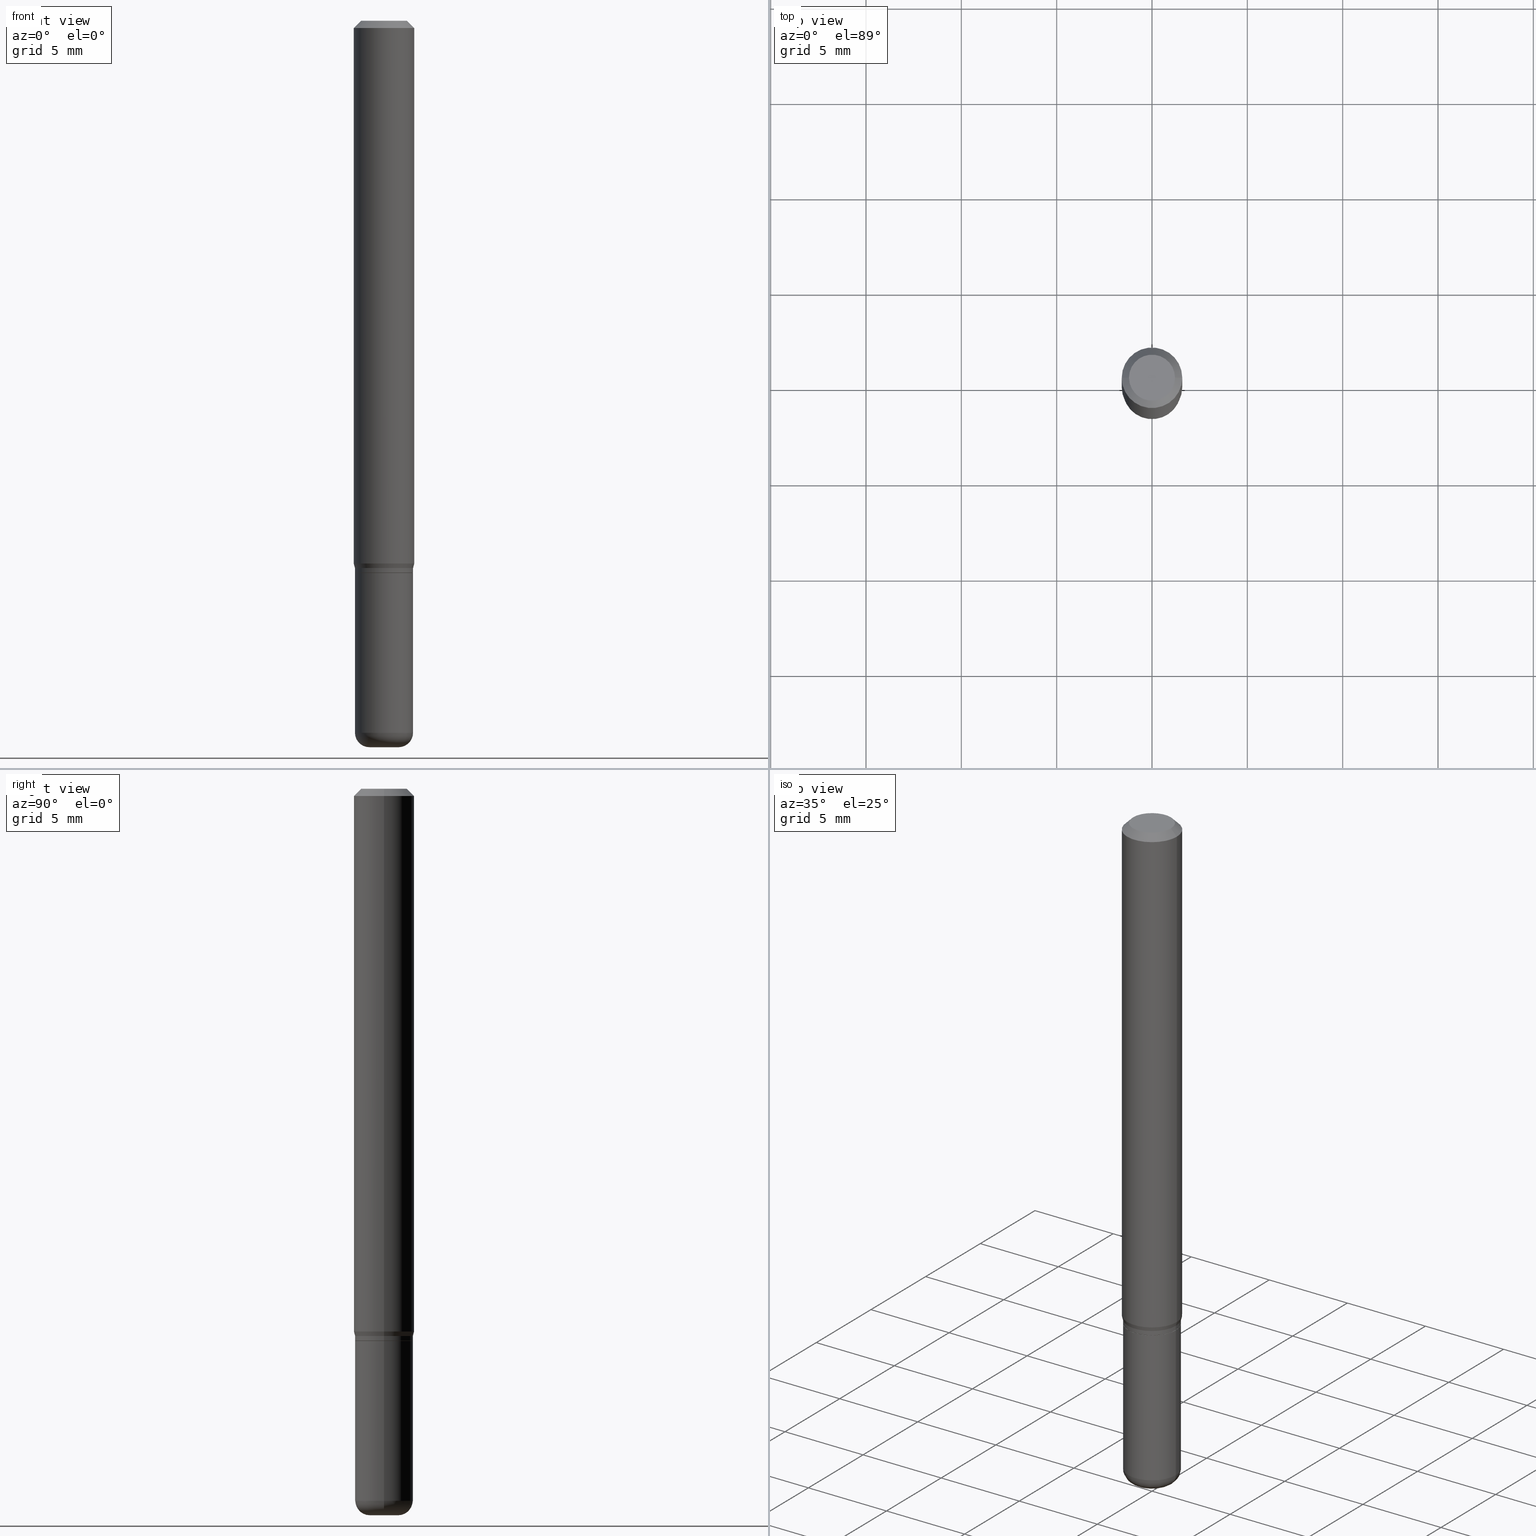
[diagram: canonical four-view strip — front | top / right | iso, engineering-drawing reading convention]
A machine part, canonical four-view strip (front | top / right | iso — engineering-drawing reading convention). The complete STEP part file that produces these views, byte-faithful:
ISO-10303-21;
HEADER;
FILE_DESCRIPTION (( 'STEP AP203' ),
    '1' );
FILE_NAME ('08640.STEP',
    '2024-02-29T20:07:18',
    ( '' ),
    ( '' ),
    'SwSTEP 2.0',
    'SolidWorks 2023',
    '' );
FILE_SCHEMA (( 'CONFIG_CONTROL_DESIGN' ));
ENDSEC;

DATA;
#1 = DIRECTION ( 'NONE',  ( -2.445468806185136597E-29, 3.491481338843145583E-15, 1.000000000000000000 ) ) ;
#2 = EDGE_CURVE ( 'NONE', #246, #95, #270, .T. ) ;
#3 = PERSON_AND_ORGANIZATION ( #82, #60 ) ;
#4 = CARTESIAN_POINT ( 'NONE',  ( 3.594839145092150820E-29, -5.132477568099424807E-15, -1.470000000000000195 ) ) ;
#5 = EDGE_LOOP ( 'NONE', ( #315, #488, #62, #148 ) ) ;
#6 = AXIS2_PLACEMENT_3D ( 'NONE', #117, #483, #229 ) ;
#7 = PRODUCT_DEFINITION_FORMATION_WITH_SPECIFIED_SOURCE ( 'ANY', '', #506, .NOT_KNOWN. ) ;
#8 = DIRECTION ( 'NONE',  ( 1.000000000000000000, -6.982962677686268288E-15, 0.000000000000000000 ) ) ;
#9 = ORIENTED_EDGE ( 'NONE', *, *, #221, .F. ) ;
#10 = SECURITY_CLASSIFICATION_LEVEL ( 'unclassified' ) ;
#11 = DIRECTION ( 'NONE',  ( -1.000000000000000000, 6.982962677686265922E-15, -4.876176775795935793E-29 ) ) ;
#12 = VERTEX_POINT ( 'NONE', #177 ) ;
#13 = CC_DESIGN_PERSON_AND_ORGANIZATION_ASSIGNMENT ( #290, #278, ( #297 ) ) ;
#14 = DIRECTION ( 'NONE',  ( -0.7071067811866199593, 7.493145998870616062E-15, 0.7071067811864750752 ) ) ;
#15 = VERTEX_POINT ( 'NONE', #134 ) ;
#16 = APPROVAL ( #158, 'UNSPECIFIED' ) ;
#17 = VECTOR ( 'NONE', #310, 39.37007874015748143 ) ;
#18 = VERTEX_POINT ( 'NONE', #382 ) ;
#19 = EDGE_LOOP ( 'NONE', ( #210, #132, #257, #181 ) ) ;
#20 = EDGE_CURVE ( 'NONE', #300, #424, #265, .T. ) ;
#21 = CARTESIAN_POINT ( 'NONE',  ( -6.680649051745406845E-45, 9.538196290434862081E-31, 2.731847993664263218E-16 ) ) ;
#22 = CARTESIAN_POINT ( 'NONE',  ( 3.582686580359767159E-29, -5.359686688179454114E-15, -1.500000000000000444 ) ) ;
#23 = AXIS2_PLACEMENT_3D ( 'NONE', #35, #279, #107 ) ;
#24 = CARTESIAN_POINT ( 'NONE',  ( 0.06000000000000003247, -4.364351673553931682E-15, -1.130000000000000338 ) ) ;
#25 = AXIS2_PLACEMENT_3D ( 'NONE', #428, #385, #316 ) ;
#26 = DIRECTION ( 'NONE',  ( 1.000000000000000000, -6.982962677686264344E-15, 0.000000000000000000 ) ) ;
#27 = EDGE_CURVE ( 'NONE', #387, #404, #267, .T. ) ;
#28 = CARTESIAN_POINT ( 'NONE',  ( 0.06000000000000010880, -5.551455328760601441E-15, -1.470000000000000195 ) ) ;
#29 = VERTEX_POINT ( 'NONE', #28 ) ;
#30 = DIRECTION ( 'NONE',  ( 0.000000000000000000, 0.000000000000000000, 1.000000000000000000 ) ) ;
#31 = CARTESIAN_POINT ( 'NONE',  ( 2.787834439051055989E-29, -3.980288726281186698E-15, -1.140000000000000124 ) ) ;
#32 = AXIS2_PLACEMENT_3D ( 'NONE', #21, #345, #500 ) ;
#33 = EDGE_CURVE ( 'NONE', #12, #300, #419, .T. ) ;
#34 = LOCAL_TIME ( 15, 7, 18.00000000000000000, #333 ) ;
#35 = CARTESIAN_POINT ( 'NONE',  ( -0.02999999999999999889, -4.919314747371394562E-15, -1.470000000000000195 ) ) ;
#36 = CC_DESIGN_PERSON_AND_ORGANIZATION_ASSIGNMENT ( #160, #112, ( #7 ) ) ;
#37 = FACE_OUTER_BOUND ( 'NONE', #292, .T. ) ;
#38 = CYLINDRICAL_SURFACE ( 'NONE', #476, 0.06000000000000004635 ) ;
#39 = COORDINATED_UNIVERSAL_TIME_OFFSET ( 5, 0, .BEHIND. ) ;
#40 = EDGE_CURVE ( 'NONE', #387, #424, #183, .T. ) ;
#41 = DIRECTION ( 'NONE',  ( 2.445468806185136597E-29, -3.491481338843145583E-15, -1.000000000000000000 ) ) ;
#42 = CIRCLE ( 'NONE', #284, 0.05950000000000005979 ) ;
#43 = APPROVAL_ROLE ( '' ) ;
#44 = AXIS2_PLACEMENT_3D ( 'NONE', #465, #105, #350 ) ;
#45 = CARTESIAN_POINT ( 'NONE',  ( 0.000000000000000000, 0.000000000000000000, 0.000000000000000000 ) ) ;
#46 = DATE_AND_TIME ( #364, #157 ) ;
#47 = DIRECTION ( 'NONE',  ( -6.982962677686266711E-15, -1.000000000000000000, 3.491481338843145583E-15 ) ) ;
#48 = EDGE_CURVE ( 'NONE', #404, #387, #136, .T. ) ;
#49 = ORIENTED_EDGE ( 'NONE', *, *, #175, .T. ) ;
#50 = DIRECTION ( 'NONE',  ( -2.445468806185136597E-29, 3.491481338843145583E-15, 1.000000000000000000 ) ) ;
#51 = ORIENTED_EDGE ( 'NONE', *, *, #340, .F. ) ;
#52 = EDGE_CURVE ( 'NONE', #18, #122, #349, .T. ) ;
#53 = AXIS2_PLACEMENT_3D ( 'NONE', #515, #317, #159 ) ;
#54 = AXIS2_PLACEMENT_3D ( 'NONE', #264, #63, #66 ) ;
#55 = DIRECTION ( 'NONE',  ( 1.000000000000000000, -6.982962677686272233E-15, 0.000000000000000000 ) ) ;
#56 = EDGE_LOOP ( 'NONE', ( #487, #408, #254, #203 ) ) ;
#57 = DIRECTION ( 'NONE',  ( 1.000000000000000000, -6.982962677686268288E-15, 0.000000000000000000 ) ) ;
#58 = EDGE_LOOP ( 'NONE', ( #352, #86, #65, #98 ) ) ;
#59 = AXIS2_PLACEMENT_3D ( 'NONE', #396, #357, #393 ) ;
#60 = ORGANIZATION ( 'UNSPECIFIED', 'UNSPECIFIED', '' ) ;
#61 = ORIENTED_EDGE ( 'NONE', *, *, #423, .F. ) ;
#62 = ORIENTED_EDGE ( 'NONE', *, *, #262, .F. ) ;
#63 = DIRECTION ( 'NONE',  ( -2.445468806185136597E-29, 3.491481338843145583E-15, 1.000000000000000000 ) ) ;
#64 = AXIS2_PLACEMENT_3D ( 'NONE', #409, #374, #456 ) ;
#65 = ORIENTED_EDGE ( 'NONE', *, *, #40, .T. ) ;
#66 = DIRECTION ( 'NONE',  ( 1.000000000000000000, -6.982962677686266711E-15, 0.000000000000000000 ) ) ;
#67 = ORIENTED_EDGE ( 'NONE', *, *, #52, .T. ) ;
#68 = DIRECTION ( 'NONE',  ( -2.445468806185136597E-29, 3.491481338843145583E-15, 1.000000000000000000 ) ) ;
#69 = DIRECTION ( 'NONE',  ( 1.000000000000000000, -6.982962677686272233E-15, 0.000000000000000000 ) ) ;
#70 =( NAMED_UNIT ( * ) SI_UNIT ( $, .STERADIAN. ) SOLID_ANGLE_UNIT ( ) );
#71 = CARTESIAN_POINT ( 'NONE',  ( 0.000000000000000000, 0.000000000000000000, 0.000000000000000000 ) ) ;
#72 = ADVANCED_FACE ( 'NONE', ( #273 ), #156, .F. ) ;
#73 = AXIS2_PLACEMENT_3D ( 'NONE', #208, #334, #291 ) ;
#74 = DIRECTION ( 'NONE',  ( 1.000000000000000000, -6.982962677686270655E-15, 0.000000000000000000 ) ) ;
#75 = DIRECTION ( 'NONE',  ( 1.000000000000000000, -6.982962677686264344E-15, 0.000000000000000000 ) ) ;
#76 = CALENDAR_DATE ( 2024, 29, 2 ) ;
#77 = ADVANCED_FACE ( 'NONE', ( #434 ), #436, .T. ) ;
#78 = CARTESIAN_POINT ( 'NONE',  ( 0.06000000000000006023, -4.189777606611764365E-16, 2.925706065477564208E-30 ) ) ;
#79 = DATE_TIME_ROLE ( 'creation_date' ) ;
#80 = FACE_OUTER_BOUND ( 'NONE', #56, .T. ) ;
#81 = DIRECTION ( 'NONE',  ( 1.000000000000000000, -6.982962677686261189E-15, 0.000000000000000000 ) ) ;
#82 = PERSON ( 'UNSPECIFIED', 'UNSPECIFIED', 'UNSPECIFIED', ('UNSPECIFIED'), ('UNSPECIFIED'), ('UNSPECIFIED') ) ;
#83 = EDGE_LOOP ( 'NONE', ( #457, #447, #218, #263 ) ) ;
#84 = LINE ( 'NONE', #337, #258 ) ;
#85 = EDGE_CURVE ( 'NONE', #424, #226, #131, .T. ) ;
#86 = ORIENTED_EDGE ( 'NONE', *, *, #27, .F. ) ;
#87 = CIRCLE ( 'NONE', #399, 0.05999999999999999778 ) ;
#88 = CIRCLE ( 'NONE', #433, 0.06000000000000003247 ) ;
#89 = CYLINDRICAL_SURFACE ( 'NONE', #313, 0.06000000000000004635 ) ;
#90 = ORIENTED_EDGE ( 'NONE', *, *, #40, .F. ) ;
#91 = CARTESIAN_POINT ( 'NONE',  ( 3.668203209277706016E-29, -5.237222008264719754E-15, -1.500000000000000444 ) ) ;
#92 = EDGE_LOOP ( 'NONE', ( #126, #209, #289, #90 ) ) ;
#93 = DIRECTION ( 'NONE',  ( 1.000000000000000000, -6.982962677686265922E-15, 0.000000000000000000 ) ) ;
#94 = CONICAL_SURFACE ( 'NONE', #295, 0.06000000000000003247, 0.2617993877991521279 ) ;
#95 = VERTEX_POINT ( 'NONE', #281 ) ;
#96 = DIRECTION ( 'NONE',  ( 1.000000000000000000, -6.982962677686266711E-15, 4.852736867747365086E-29 ) ) ;
#97 = CYLINDRICAL_SURFACE ( 'NONE', #64, 0.06000000000000006023 ) ;
#98 = ORIENTED_EDGE ( 'NONE', *, *, #85, .T. ) ;
#99 = DIRECTION ( 'NONE',  ( -2.445468806185136597E-29, 3.491481338843145583E-15, 1.000000000000000000 ) ) ;
#100 = CIRCLE ( 'NONE', #188, 0.06000000000000006023 ) ;
#101 = CARTESIAN_POINT ( 'NONE',  ( -0.06250000000000000000, 3.840629472727455270E-16, -0.01499999999999970281 ) ) ;
#102 = CC_DESIGN_PERSON_AND_ORGANIZATION_ASSIGNMENT ( #114, #242, ( #506 ) ) ;
#103 = DIRECTION ( 'NONE',  ( -2.445468806185136877E-29, 3.491481338843145188E-15, 1.000000000000000000 ) ) ;
#104 = ORIENTED_EDGE ( 'NONE', *, *, #33, .F. ) ;
#105 = DIRECTION ( 'NONE',  ( -2.445468806185136597E-29, 3.491481338843145583E-15, 1.000000000000000000 ) ) ;
#106 = ADVANCED_FACE ( 'NONE', ( #318 ), #441, .T. ) ;
#107 = DIRECTION ( 'NONE',  ( -1.000000000000000000, 7.105427357600997126E-15, 0.000000000000000000 ) ) ;
#108 = LINE ( 'NONE', #182, #17 ) ;
#109 = APPROVAL ( #440, 'UNSPECIFIED' ) ;
#110 = LINE ( 'NONE', #78, #370 ) ;
#111 = AXIS2_PLACEMENT_3D ( 'NONE', #418, #68, #390 ) ;
#112 = PERSON_AND_ORGANIZATION_ROLE ( 'creator' ) ;
#113 = DIRECTION ( 'NONE',  ( -2.445468806185136597E-29, 3.491481338843145583E-15, 1.000000000000000000 ) ) ;
#114 = PERSON_AND_ORGANIZATION ( #82, #60 ) ;
#115 = CARTESIAN_POINT ( 'NONE',  ( 0.05999999999999999778, -4.399266486942362543E-15, -1.140000000000000124 ) ) ;
#116 = PERSON_AND_ORGANIZATION ( #82, #60 ) ;
#117 = CARTESIAN_POINT ( 'NONE',  ( 3.668203209277632395E-31, -5.237222008264614861E-17, -0.01499999999999970281 ) ) ;
#118 = CIRCLE ( 'NONE', #23, 0.03000000000000010991 ) ;
#119 = PERSON_AND_ORGANIZATION ( #82, #60 ) ;
#120 = CC_DESIGN_APPROVAL ( #109, ( #191 ) ) ;
#121 = CARTESIAN_POINT ( 'NONE',  ( 0.05950000000000005979, -4.395775005603519536E-15, -1.140000000000000124 ) ) ;
#122 = VERTEX_POINT ( 'NONE', #239 ) ;
#123 = PERSON_AND_ORGANIZATION ( #82, #60 ) ;
#124 = ADVANCED_FACE ( 'NONE', ( #513 ), #38, .T. ) ;
#125 = DIRECTION ( 'NONE',  ( -2.445468806185136597E-29, 3.491481338843145583E-15, 1.000000000000000000 ) ) ;
#126 = ORIENTED_EDGE ( 'NONE', *, *, #48, .F. ) ;
#127 = DIRECTION ( 'NONE',  ( -2.445468806185136597E-29, 3.491481338843145583E-15, 1.000000000000000000 ) ) ;
#128 = EDGE_CURVE ( 'NONE', #29, #201, #110, .T. ) ;
#129 = EDGE_CURVE ( 'NONE', #343, #342, #42, .T. ) ;
#130 = ORIENTED_EDGE ( 'NONE', *, *, #186, .F. ) ;
#131 = CIRCLE ( 'NONE', #6, 0.06250000000000000000 ) ;
#132 = ORIENTED_EDGE ( 'NONE', *, *, #2, .T. ) ;
#133 = ORIENTED_EDGE ( 'NONE', *, *, #129, .F. ) ;
#134 = CARTESIAN_POINT ( 'NONE',  ( 0.03000000000000000930, -5.446710888595307282E-15, -1.500000000000000444 ) ) ;
#135 = CLOSED_SHELL ( 'NONE', ( #426, #398, #72, #205, #231, #372 ) ) ;
#136 = CIRCLE ( 'NONE', #32, 0.04750000000000000749 ) ;
#137 = EDGE_CURVE ( 'NONE', #29, #246, #249, .T. ) ;
#138 = CIRCLE ( 'NONE', #190, 0.03000000000000000930 ) ;
#139 = DIRECTION ( 'NONE',  ( -2.445468806185136877E-29, 3.491481338843145188E-15, 1.000000000000000000 ) ) ;
#140 = CARTESIAN_POINT ( 'NONE',  ( 2.787834439051055989E-29, -3.980288726281186698E-15, -1.140000000000000124 ) ) ;
#141 = APPROVAL ( #327, 'UNSPECIFIED' ) ;
#142 = CARTESIAN_POINT ( 'NONE',  ( -0.06000000000000003247, -3.519048271436695347E-15, -1.130000000000000338 ) ) ;
#143 = FACE_OUTER_BOUND ( 'NONE', #307, .T. ) ;
#144 = ADVANCED_FACE ( 'NONE', ( #510 ), #355, .T. ) ;
#145 = EDGE_LOOP ( 'NONE', ( #492, #185, #499, #498 ) ) ;
#146 = CARTESIAN_POINT ( 'NONE',  ( 0.000000000000000000, 0.000000000000000000, 0.000000000000000000 ) ) ;
#147 = VERTEX_POINT ( 'NONE', #475 ) ;
#148 = ORIENTED_EDGE ( 'NONE', *, *, #52, .F. ) ;
#149 = AXIS2_PLACEMENT_3D ( 'NONE', #187, #312, #26 ) ;
#150 = EDGE_CURVE ( 'NONE', #300, #122, #176, .T. ) ;
#151 = DIRECTION ( 'NONE',  ( 1.000000000000000000, 0.000000000000000000, 0.000000000000000000 ) ) ;
#152 = DIRECTION ( 'NONE',  ( -1.000000000000000000, 6.982962677686266711E-15, 0.000000000000000000 ) ) ;
#153 = MECHANICAL_CONTEXT ( 'NONE', #309, 'mechanical' ) ;
#154 = DIRECTION ( 'NONE',  ( 1.000000000000000000, -6.982962677686269077E-15, 0.000000000000000000 ) ) ;
#155 = PLANE ( 'NONE',  #251 ) ;
#156 = PLANE ( 'NONE',  #59 ) ;
#157 = LOCAL_TIME ( 15, 7, 18.00000000000000000, #39 ) ;
#158 = APPROVAL_STATUS ( 'not_yet_approved' ) ;
#159 = DIRECTION ( 'NONE',  ( 1.000000000000000000, -6.982962677686269077E-15, 0.000000000000000000 ) ) ;
#160 = PERSON_AND_ORGANIZATION ( #82, #60 ) ;
#161 = DIRECTION ( 'NONE',  ( 1.000000000000000000, -6.982962677686269077E-15, 0.000000000000000000 ) ) ;
#162 = DATE_TIME_ROLE ( 'classification_date' ) ;
#163 = FACE_OUTER_BOUND ( 'NONE', #261, .T. ) ;
#164 = ORIENTED_EDGE ( 'NONE', *, *, #137, .F. ) ;
#165 = AXIS2_PLACEMENT_3D ( 'NONE', #31, #1, #161 ) ;
#166 = CONICAL_SURFACE ( 'NONE', #509, 0.06250000000000000000, 0.7853981633974488341 ) ;
#167 = EDGE_CURVE ( 'NONE', #147, #12, #473, .T. ) ;
#168 = CARTESIAN_POINT ( 'NONE',  ( -0.03000000000000000930, -4.865105557090026124E-15, -1.500000000000000444 ) ) ;
#169 = ORIENTED_EDGE ( 'NONE', *, *, #221, .T. ) ;
#170 = CC_DESIGN_PERSON_AND_ORGANIZATION_ASSIGNMENT ( #116, #336, ( #191 ) ) ;
#171 = DIRECTION ( 'NONE',  ( 1.000000000000000000, -6.982962677686274599E-15, 0.000000000000000000 ) ) ;
#172 = ADVANCED_FACE ( 'NONE', ( #389 ), #94, .T. ) ;
#173 = ORIENTED_EDGE ( 'NONE', *, *, #150, .T. ) ;
#174 = CARTESIAN_POINT ( 'NONE',  ( 0.04750000000000000749, -4.035134999187568762E-16, 2.731847993664288856E-16 ) ) ;
#175 = EDGE_CURVE ( 'NONE', #308, #246, #118, .T. ) ;
#176 = CIRCLE ( 'NONE', #516, 0.06250000000000000000 ) ;
#177 = CARTESIAN_POINT ( 'NONE',  ( -0.06000000000000003247, -3.493878505051893006E-15, -1.130000000000000338 ) ) ;
#178 = ORIENTED_EDGE ( 'NONE', *, *, #505, .F. ) ;
#179 = AXIS2_PLACEMENT_3D ( 'NONE', #288, #47, #171 ) ;
#180 = CONICAL_SURFACE ( 'NONE', #149, 0.06000000000000003247, 0.2617993877991521279 ) ;
#181 = ORIENTED_EDGE ( 'NONE', *, *, #128, .F. ) ;
#182 = CARTESIAN_POINT ( 'NONE',  ( 0.05950000000000005979, -4.395775005603519536E-15, -1.140000000000000124 ) ) ;
#183 = LINE ( 'NONE', #101, #341 ) ;
#184 = DESIGN_CONTEXT ( 'detailed design', #213, 'design' ) ;
#185 = ORIENTED_EDGE ( 'NONE', *, *, #129, .T. ) ;
#186 = EDGE_CURVE ( 'NONE', #122, #226, #321, .T. ) ;
#187 = CARTESIAN_POINT ( 'NONE',  ( 2.763379750989205565E-29, -3.945373912892755838E-15, -1.130000000000000338 ) ) ;
#188 = AXIS2_PLACEMENT_3D ( 'NONE', #450, #127, #81 ) ;
#189 = CARTESIAN_POINT ( 'NONE',  ( 0.06250000000000000000, -4.888073874380378612E-16, -0.01499999999999970281 ) ) ;
#190 = AXIS2_PLACEMENT_3D ( 'NONE', #91, #212, #93 ) ;
#191 = PRODUCT_DEFINITION ( 'UNKNOWN', '', #7, #184 ) ;
#192 = FACE_OUTER_BOUND ( 'NONE', #5, .T. ) ;
#193 = CARTESIAN_POINT ( 'NONE',  ( 0.06250000000000000000, -4.364351673553916694E-16, 3.047610484872459871E-30 ) ) ;
#194 = DIRECTION ( 'NONE',  ( -2.445468806185136597E-29, 3.491481338843145583E-15, 1.000000000000000000 ) ) ;
#195 = CALENDAR_DATE ( 2024, 29, 2 ) ;
#196 = DIRECTION ( 'NONE',  ( -2.445468806185136597E-29, 3.491481338843145583E-15, 1.000000000000000000 ) ) ;
#197 = CIRCLE ( 'NONE', #179, 0.03000000000000010991 ) ;
#198 = DIRECTION ( 'NONE',  ( 1.000000000000000000, -6.982962677686266711E-15, 4.876176775795935232E-29 ) ) ;
#199 = PERSON_AND_ORGANIZATION_ROLE ( 'design_supplier' ) ;
#200 = DIRECTION ( 'NONE',  ( -2.445468806185136597E-29, 3.491481338843145583E-15, 1.000000000000000000 ) ) ;
#201 = VERTEX_POINT ( 'NONE', #115 ) ;
#202 = VECTOR ( 'NONE', #14, 39.37007874015748143 ) ;
#203 = ORIENTED_EDGE ( 'NONE', *, *, #256, .F. ) ;
#204 = VECTOR ( 'NONE', #358, 39.37007874015748143 ) ;
#205 = ADVANCED_FACE ( 'NONE', ( #233 ), #479, .T. ) ;
#206 = CARTESIAN_POINT ( 'NONE',  ( 2.740563216406686274E-29, -3.912797948517153280E-15, -1.120669872981078452 ) ) ;
#207 = ORIENTED_EDGE ( 'NONE', *, *, #167, .F. ) ;
#208 = CARTESIAN_POINT ( 'NONE',  ( 3.668203209277706016E-29, -5.237222008264719754E-15, -1.500000000000000444 ) ) ;
#209 = ORIENTED_EDGE ( 'NONE', *, *, #359, .T. ) ;
#210 = ORIENTED_EDGE ( 'NONE', *, *, #137, .T. ) ;
#211 = CONICAL_SURFACE ( 'NONE', #275, 0.05950000000000005979, 0.7853981633975507526 ) ;
#212 = DIRECTION ( 'NONE',  ( -2.445468806185136597E-29, 3.491481338843145583E-15, 1.000000000000000000 ) ) ;
#213 = APPLICATION_CONTEXT ( 'configuration controlled 3d designs of mechanical parts and assemblies' ) ;
#214 = ORIENTED_EDGE ( 'NONE', *, *, #252, .F. ) ;
#215 = DIRECTION ( 'NONE',  ( 1.000000000000000000, -6.982962677686265922E-15, 4.876176775795935793E-29 ) ) ;
#216 = MANIFOLD_SOLID_BREP ( 'Body-Move/Copy2[1]', #135 ) ;
#217 = EDGE_LOOP ( 'NONE', ( #453, #449 ) ) ;
#218 = ORIENTED_EDGE ( 'NONE', *, *, #512, .F. ) ;
#219 = CC_DESIGN_DATE_AND_TIME_ASSIGNMENT ( #280, #79, ( #191 ) ) ;
#220 = CARTESIAN_POINT ( 'NONE',  ( 0.06000000000000004635, -4.189777606611763379E-16, 2.925706065477563508E-30 ) ) ;
#221 = EDGE_CURVE ( 'NONE', #342, #343, #406, .T. ) ;
#222 = LOCAL_TIME ( 15, 7, 18.00000000000000000, #366 ) ;
#223 = MANIFOLD_SOLID_BREP ( 'Body-Move/Copy2[2]', #294 ) ;
#224 = ORIENTED_EDGE ( 'NONE', *, *, #262, .T. ) ;
#225 =( NAMED_UNIT ( * ) PLANE_ANGLE_UNIT ( ) SI_UNIT ( $, .RADIAN. ) );
#226 = VERTEX_POINT ( 'NONE', #189 ) ;
#227 = DIRECTION ( 'NONE',  ( -2.445468806185136597E-29, 3.491481338843145583E-15, 1.000000000000000000 ) ) ;
#228 = CIRCLE ( 'NONE', #414, 0.05999999999999999778 ) ;
#229 = DIRECTION ( 'NONE',  ( 1.000000000000000000, -6.982962677686266711E-15, 0.000000000000000000 ) ) ;
#230 = LOCAL_TIME ( 15, 7, 18.00000000000000000, #444 ) ;
#231 = ADVANCED_FACE ( 'NONE', ( #80 ), #320, .T. ) ;
#232 = LINE ( 'NONE', #220, #347 ) ;
#233 = FACE_OUTER_BOUND ( 'NONE', #335, .T. ) ;
#234 = CC_DESIGN_PERSON_AND_ORGANIZATION_ASSIGNMENT ( #123, #199, ( #7 ) ) ;
#235 = DATE_AND_TIME ( #76, #356 ) ;
#236 = CARTESIAN_POINT ( 'NONE',  ( -0.06000000000000004635, 4.263256414560604409E-16, -2.951361054152945515E-30 ) ) ;
#237 = PRODUCT_DEFINITION_SHAPE ( 'NONE', 'NONE',  #191 ) ;
#238 = APPROVAL_DATE_TIME ( #235, #141 ) ;
#239 = CARTESIAN_POINT ( 'NONE',  ( 0.06250000000000000000, -4.349233115872544950E-15, -1.120669872981078452 ) ) ;
#240 = AXIS2_PLACEMENT_3D ( 'NONE', #4, #125, #55 ) ;
#241 = CIRCLE ( 'NONE', #54, 0.06250000000000000000 ) ;
#242 = PERSON_AND_ORGANIZATION_ROLE ( 'design_owner' ) ;
#243 = EDGE_CURVE ( 'NONE', #201, #95, #228, .T. ) ;
#244 = CARTESIAN_POINT ( 'NONE',  ( 3.316907271900976589E-16, 0.04750000000000000749, -2.925296391183627249E-17 ) ) ;
#245 = CARTESIAN_POINT ( 'NONE',  ( 2.787834439051055989E-29, -3.980288726281186698E-15, -1.140000000000000124 ) ) ;
#246 = VERTEX_POINT ( 'NONE', #369 ) ;
#247 = DATE_AND_TIME ( #482, #34 ) ;
#248 = DIRECTION ( 'NONE',  ( 0.7071067811865479058, -7.319954787623257623E-15, -0.7071067811865471286 ) ) ;
#249 = CIRCLE ( 'NONE', #362, 0.06000000000000010880 ) ;
#250 = EDGE_LOOP ( 'NONE', ( #207, #255, #455, #178 ) ) ;
#251 = AXIS2_PLACEMENT_3D ( 'NONE', #422, #319, #425 ) ;
#252 = EDGE_CURVE ( 'NONE', #471, #147, #100, .T. ) ;
#253 = CARTESIAN_POINT ( 'NONE',  ( 2.787834439051055989E-29, -3.980288726281186698E-15, -1.140000000000000124 ) ) ;
#254 = ORIENTED_EDGE ( 'NONE', *, *, #287, .T. ) ;
#255 = ORIENTED_EDGE ( 'NONE', *, *, #459, .T. ) ;
#256 = EDGE_CURVE ( 'NONE', #246, #29, #378, .T. ) ;
#257 = ORIENTED_EDGE ( 'NONE', *, *, #243, .F. ) ;
#258 = VECTOR ( 'NONE', #248, 39.37007874015748143 ) ;
#259 = FACE_OUTER_BOUND ( 'NONE', #331, .T. ) ;
#260 = TOROIDAL_SURFACE ( 'NONE', #25, 0.02999999999999999889, 0.03000000000000011685 ) ;
#261 = EDGE_LOOP ( 'NONE', ( #467, #429 ) ) ;
#262 = EDGE_CURVE ( 'NONE', #122, #300, #431, .T. ) ;
#263 = ORIENTED_EDGE ( 'NONE', *, *, #474, .F. ) ;
#264 = CARTESIAN_POINT ( 'NONE',  ( 3.668203209277632395E-31, -5.237222008264614861E-17, -0.01499999999999970281 ) ) ;
#265 = LINE ( 'NONE', #386, #420 ) ;
#266 = EDGE_CURVE ( 'NONE', #343, #147, #367, .T. ) ;
#267 = CIRCLE ( 'NONE', #468, 0.04750000000000000749 ) ;
#268 = FACE_OUTER_BOUND ( 'NONE', #416, .T. ) ;
#269 = AXIS2_PLACEMENT_3D ( 'NONE', #283, #41, #152 ) ;
#270 = LINE ( 'NONE', #271, #361 ) ;
#271 = CARTESIAN_POINT ( 'NONE',  ( -0.06000000000000006023, 4.263256414560605395E-16, -2.951361054152946216E-30 ) ) ;
#272 = LENGTH_MEASURE_WITH_UNIT ( LENGTH_MEASURE( 0.02539999999999999897 ), #392 );
#273 = FACE_OUTER_BOUND ( 'NONE', #217, .T. ) ;
#274 = DIRECTION ( 'NONE',  ( -2.445468806185136597E-29, 3.491481338843145583E-15, 1.000000000000000000 ) ) ;
#275 = AXIS2_PLACEMENT_3D ( 'NONE', #140, #458, #463 ) ;
#276 = DIRECTION ( 'NONE',  ( -2.445468806185136877E-29, 3.491481338843145188E-15, 1.000000000000000000 ) ) ;
#277 = APPROVAL_PERSON_ORGANIZATION ( #119, #109, #401 ) ;
#278 = PERSON_AND_ORGANIZATION_ROLE ( 'classification_officer' ) ;
#279 = DIRECTION ( 'NONE',  ( 7.105427357601001859E-15, 1.000000000000000000, -3.491481338843145583E-15 ) ) ;
#280 = DATE_AND_TIME ( #286, #222 ) ;
#281 = CARTESIAN_POINT ( 'NONE',  ( -0.05999999999999999778, -4.130057505734245262E-15, -1.140000000000000124 ) ) ;
#282 = EDGE_CURVE ( 'NONE', #95, #201, #87, .T. ) ;
#283 = CARTESIAN_POINT ( 'NONE',  ( 3.668203209277632395E-31, -5.237222008264614861E-17, -0.01499999999999970281 ) ) ;
#284 = AXIS2_PLACEMENT_3D ( 'NONE', #400, #439, #154 ) ;
#285 = AXIS2_PLACEMENT_3D ( 'NONE', #146, #30, #151 ) ;
#286 = CALENDAR_DATE ( 2024, 29, 2 ) ;
#287 = EDGE_CURVE ( 'NONE', #15, #29, #197, .T. ) ;
#288 = CARTESIAN_POINT ( 'NONE',  ( 0.02999999999999999889, -5.341966448430012335E-15, -1.470000000000000195 ) ) ;
#289 = ORIENTED_EDGE ( 'NONE', *, *, #484, .T. ) ;
#290 = PERSON_AND_ORGANIZATION ( #82, #60 ) ;
#291 = DIRECTION ( 'NONE',  ( 1.000000000000000000, -6.982962677686265922E-15, 0.000000000000000000 ) ) ;
#292 = EDGE_LOOP ( 'NONE', ( #51, #61 ) ) ;
#293 = DIRECTION ( 'NONE',  ( 1.000000000000000000, -6.982962677686271444E-15, 4.883557194083114583E-29 ) ) ;
#294 = CLOSED_SHELL ( 'NONE', ( #124, #395, #106, #77, #445, #172, #494, #413, #322, #454, #144, #325 ) ) ;
#295 = AXIS2_PLACEMENT_3D ( 'NONE', #324, #481, #75 ) ;
#296 = ORIENTED_EDGE ( 'NONE', *, *, #256, .T. ) ;
#297 = SECURITY_CLASSIFICATION ( '', '', #10 ) ;
#298 = ORIENTED_EDGE ( 'NONE', *, *, #85, .F. ) ;
#299 = DIRECTION ( 'NONE',  ( -1.000000000000000000, 6.982962677686266711E-15, 0.000000000000000000 ) ) ;
#300 = VERTEX_POINT ( 'NONE', #373 ) ;
#301 = DIRECTION ( 'NONE',  ( -2.438088387897960049E-29, 3.491481338843145188E-15, 1.000000000000000000 ) ) ;
#302 = CARTESIAN_POINT ( 'NONE',  ( -6.680649051745406845E-45, 9.538196290434862081E-31, 2.731847993664263218E-16 ) ) ;
#303 = ADVANCED_BREP_SHAPE_REPRESENTATION ( '08640', ( #216, #223, #285 ), #407 ) ;
#304 = CIRCLE ( 'NONE', #73, 0.03000000000000000930 ) ;
#305 = FACE_OUTER_BOUND ( 'NONE', #332, .T. ) ;
#306 = CC_DESIGN_SECURITY_CLASSIFICATION ( #297, ( #7 ) ) ;
#307 = EDGE_LOOP ( 'NONE', ( #311, #173, #338, #298 ) ) ;
#308 = VERTEX_POINT ( 'NONE', #168 ) ;
#309 = APPLICATION_CONTEXT ( 'configuration controlled 3d designs of mechanical parts and assemblies' ) ;
#310 = DIRECTION ( 'NONE',  ( 0.7071067811866199593, -2.468850131083015945E-15, 0.7071067811864750752 ) ) ;
#311 = ORIENTED_EDGE ( 'NONE', *, *, #20, .F. ) ;
#312 = DIRECTION ( 'NONE',  ( -2.445468806185136597E-29, 3.491481338843145583E-15, 1.000000000000000000 ) ) ;
#313 = AXIS2_PLACEMENT_3D ( 'NONE', #410, #402, #328 ) ;
#314 = ORIENTED_EDGE ( 'NONE', *, *, #287, .F. ) ;
#315 = ORIENTED_EDGE ( 'NONE', *, *, #512, .T. ) ;
#316 = DIRECTION ( 'NONE',  ( 1.000000000000000000, -6.982962677686271444E-15, 4.883557194083114583E-29 ) ) ;
#317 = DIRECTION ( 'NONE',  ( -2.445468806185136597E-29, 3.491481338843145583E-15, 1.000000000000000000 ) ) ;
#318 = FACE_OUTER_BOUND ( 'NONE', #92, .T. ) ;
#319 = DIRECTION ( 'NONE',  ( -2.438088387897960049E-29, 3.491481338843145188E-15, 1.000000000000000000 ) ) ;
#320 = TOROIDAL_SURFACE ( 'NONE', #461, 0.02999999999999999889, 0.03000000000000011685 ) ;
#321 = LINE ( 'NONE', #193, #204 ) ;
#322 = ADVANCED_FACE ( 'NONE', ( #163 ), #405, .F. ) ;
#323 = APPLICATION_PROTOCOL_DEFINITION ( 'international standard', 'config_control_design', 1994, #213 ) ;
#324 = CARTESIAN_POINT ( 'NONE',  ( 2.763379750989205565E-29, -3.945373912892755838E-15, -1.130000000000000338 ) ) ;
#325 = ADVANCED_FACE ( 'NONE', ( #403 ), #89, .T. ) ;
#326 = DIRECTION ( 'NONE',  ( 1.000000000000000000, -6.982962677686266711E-15, 4.876176775795935793E-29 ) ) ;
#327 = APPROVAL_STATUS ( 'not_yet_approved' ) ;
#328 = DIRECTION ( 'NONE',  ( 1.000000000000000000, -6.982962677686266711E-15, 4.876176775795935232E-29 ) ) ;
#329 = AXIS2_PLACEMENT_3D ( 'NONE', #518, #194, #326 ) ;
#330 = APPROVAL_PERSON_ORGANIZATION ( #438, #141, #371 ) ;
#331 = EDGE_LOOP ( 'NONE', ( #464, #49, #164, #314 ) ) ;
#332 = EDGE_LOOP ( 'NONE', ( #169, #379, #214, #495 ) ) ;
#333 = COORDINATED_UNIVERSAL_TIME_OFFSET ( 5, 0, .BEHIND. ) ;
#334 = DIRECTION ( 'NONE',  ( -2.445468806185136597E-29, 3.491481338843145583E-15, 1.000000000000000000 ) ) ;
#335 = EDGE_LOOP ( 'NONE', ( #411, #296, #353, #504 ) ) ;
#336 = PERSON_AND_ORGANIZATION_ROLE ( 'creator' ) ;
#337 = CARTESIAN_POINT ( 'NONE',  ( 0.06250000000000000000, -4.811533449433669144E-16, -0.01499999999999970281 ) ) ;
#338 = ORIENTED_EDGE ( 'NONE', *, *, #186, .T. ) ;
#339 = FACE_OUTER_BOUND ( 'NONE', #58, .T. ) ;
#340 = EDGE_CURVE ( 'NONE', #15, #308, #304, .T. ) ;
#341 = VECTOR ( 'NONE', #417, 39.37007874015748143 ) ;
#342 = VERTEX_POINT ( 'NONE', #121 ) ;
#343 = VERTEX_POINT ( 'NONE', #443 ) ;
#344 = DIRECTION ( 'NONE',  ( -2.445468806185136597E-29, 3.491481338843145583E-15, 1.000000000000000000 ) ) ;
#345 = DIRECTION ( 'NONE',  ( -2.445468806185136597E-29, 3.491481338843145583E-15, 1.000000000000000000 ) ) ;
#346 = VECTOR ( 'NONE', #430, 39.37007874015748143 ) ;
#347 = VECTOR ( 'NONE', #103, 39.37007874015748143 ) ;
#348 = CARTESIAN_POINT ( 'NONE',  ( -0.04750000000000000749, 3.578768372314221353E-16, 2.731847993664239060E-16 ) ) ;
#349 = LINE ( 'NONE', #24, #508 ) ;
#350 = DIRECTION ( 'NONE',  ( 1.000000000000000000, -6.982962677686266711E-15, 4.876176775795935793E-29 ) ) ;
#351 = PRODUCT_RELATED_PRODUCT_CATEGORY ( 'detail', '', ( #506 ) ) ;
#352 = ORIENTED_EDGE ( 'NONE', *, *, #359, .F. ) ;
#353 = ORIENTED_EDGE ( 'NONE', *, *, #128, .T. ) ;
#354 = CYLINDRICAL_SURFACE ( 'NONE', #44, 0.06250000000000000000 ) ;
#355 = CONICAL_SURFACE ( 'NONE', #53, 0.05950000000000005979, 0.7853981633975507526 ) ;
#356 = LOCAL_TIME ( 15, 7, 18.00000000000000000, #480 ) ;
#357 = DIRECTION ( 'NONE',  ( 2.438088387897960049E-29, -3.491481338843145188E-15, -1.000000000000000000 ) ) ;
#358 = DIRECTION ( 'NONE',  ( -2.445468806185136877E-29, 3.491481338843145188E-15, 1.000000000000000000 ) ) ;
#359 = EDGE_CURVE ( 'NONE', #404, #226, #84, .T. ) ;
#360 = CARTESIAN_POINT ( 'NONE',  ( 3.594839145092150820E-29, -5.132477568099424807E-15, -1.470000000000000195 ) ) ;
#361 = VECTOR ( 'NONE', #381, 39.37007874015748143 ) ;
#362 = AXIS2_PLACEMENT_3D ( 'NONE', #360, #196, #69 ) ;
#363 = CARTESIAN_POINT ( 'NONE',  ( 2.740563216406686274E-29, -3.912797948517153280E-15, -1.120669872981078452 ) ) ;
#364 = CALENDAR_DATE ( 2024, 29, 2 ) ;
#365 = DIRECTION ( 'NONE',  ( 1.000000000000000000, -6.982962677686266711E-15, 4.876176775795935232E-29 ) ) ;
#366 = COORDINATED_UNIVERSAL_TIME_OFFSET ( 5, 0, .BEHIND. ) ;
#367 = LINE ( 'NONE', #486, #202 ) ;
#368 = ORIENTED_EDGE ( 'NONE', *, *, #484, .F. ) ;
#369 = CARTESIAN_POINT ( 'NONE',  ( -0.06000000000000010880, -4.130057505734244473E-15, -1.470000000000000195 ) ) ;
#370 = VECTOR ( 'NONE', #276, 39.37007874015748143 ) ;
#371 = APPROVAL_ROLE ( '' ) ;
#372 = ADVANCED_FACE ( 'NONE', ( #37 ), #497, .F. ) ;
#373 = CARTESIAN_POINT ( 'NONE',  ( -0.06250000000000000000, -3.468708738667090664E-15, -1.120669872981078452 ) ) ;
#374 = DIRECTION ( 'NONE',  ( -2.445468806185136597E-29, 3.491481338843145583E-15, 1.000000000000000000 ) ) ;
#375 = DIRECTION ( 'NONE',  ( -2.445468806185136597E-29, 3.491481338843145583E-15, 1.000000000000000000 ) ) ;
#376 = ORIENTED_EDGE ( 'NONE', *, *, #20, .T. ) ;
#377 = FACE_OUTER_BOUND ( 'NONE', #19, .T. ) ;
#378 = CIRCLE ( 'NONE', #240, 0.06000000000000010880 ) ;
#379 = ORIENTED_EDGE ( 'NONE', *, *, #266, .T. ) ;
#380 = CARTESIAN_POINT ( 'NONE',  ( -0.06250000000000000000, -1.538495874449837169E-15, -0.01499999999999970281 ) ) ;
#381 = DIRECTION ( 'NONE',  ( -2.445468806185136877E-29, 3.491481338843145188E-15, 1.000000000000000000 ) ) ;
#382 = CARTESIAN_POINT ( 'NONE',  ( 0.06000000000000003247, -4.364351673553931682E-15, -1.130000000000000338 ) ) ;
#383 = ORIENTED_EDGE ( 'NONE', *, *, #505, .T. ) ;
#384 = AXIS2_PLACEMENT_3D ( 'NONE', #244, #448, #11 ) ;
#385 = DIRECTION ( 'NONE',  ( -2.445468806185136597E-29, 3.491481338843145583E-15, 1.000000000000000000 ) ) ;
#386 = CARTESIAN_POINT ( 'NONE',  ( -0.06250000000000000000, 4.440892098500626162E-16, -3.074334431409316114E-30 ) ) ;
#387 = VERTEX_POINT ( 'NONE', #348 ) ;
#388 = DIMENSIONAL_EXPONENTS ( 1.000000000000000000, 0.000000000000000000, 0.000000000000000000, 0.000000000000000000, 0.000000000000000000, 0.000000000000000000, 0.000000000000000000 ) ;
#389 = FACE_OUTER_BOUND ( 'NONE', #507, .T. ) ;
#390 = DIRECTION ( 'NONE',  ( 1.000000000000000000, -6.982962677686264344E-15, 0.000000000000000000 ) ) ;
#391 = DIRECTION ( 'NONE',  ( -2.445468806185136597E-29, 3.491481338843145583E-15, 1.000000000000000000 ) ) ;
#392 =( LENGTH_UNIT ( ) NAMED_UNIT ( * ) SI_UNIT ( $, .METRE. ) );
#393 = DIRECTION ( 'NONE',  ( -1.000000000000000000, 6.982962677686265922E-15, -4.876176775795935793E-29 ) ) ;
#394 = SHAPE_DEFINITION_REPRESENTATION ( #237, #303 ) ;
#395 = ADVANCED_FACE ( 'NONE', ( #305 ), #211, .T. ) ;
#396 = CARTESIAN_POINT ( 'NONE',  ( 4.189777606612038494E-16, 0.05999999999999602179, -1.140000000000000346 ) ) ;
#397 = APPROVAL_DATE_TIME ( #46, #109 ) ;
#398 = ADVANCED_FACE ( 'NONE', ( #377 ), #97, .T. ) ;
#399 = AXIS2_PLACEMENT_3D ( 'NONE', #245, #493, #8 ) ;
#400 = CARTESIAN_POINT ( 'NONE',  ( 2.787834439051055989E-29, -3.980288726281186698E-15, -1.140000000000000124 ) ) ;
#401 = APPROVAL_ROLE ( '' ) ;
#402 = DIRECTION ( 'NONE',  ( -2.445468806185136597E-29, 3.491481338843145583E-15, 1.000000000000000000 ) ) ;
#403 = FACE_OUTER_BOUND ( 'NONE', #250, .T. ) ;
#404 = VERTEX_POINT ( 'NONE', #174 ) ;
#405 = PLANE ( 'NONE',  #384 ) ;
#406 = CIRCLE ( 'NONE', #165, 0.05950000000000005979 ) ;
#407 =( GEOMETRIC_REPRESENTATION_CONTEXT ( 3 ) GLOBAL_UNCERTAINTY_ASSIGNED_CONTEXT ( ( #466 ) ) GLOBAL_UNIT_ASSIGNED_CONTEXT ( ( #503, #225, #70 ) ) REPRESENTATION_CONTEXT ( 'NONE', 'WORKASPACE' ) );
#408 = ORIENTED_EDGE ( 'NONE', *, *, #423, .T. ) ;
#409 = CARTESIAN_POINT ( 'NONE',  ( 0.000000000000000000, 0.000000000000000000, 0.000000000000000000 ) ) ;
#410 = CARTESIAN_POINT ( 'NONE',  ( 0.000000000000000000, 0.000000000000000000, 0.000000000000000000 ) ) ;
#411 = ORIENTED_EDGE ( 'NONE', *, *, #2, .F. ) ;
#412 = DIRECTION ( 'NONE',  ( 2.445468806185136597E-29, -3.491481338843145583E-15, -1.000000000000000000 ) ) ;
#413 = ADVANCED_FACE ( 'NONE', ( #339 ), #166, .T. ) ;
#414 = AXIS2_PLACEMENT_3D ( 'NONE', #253, #375, #57 ) ;
#415 = APPROVAL_PERSON_ORGANIZATION ( #3, #16, #43 ) ;
#416 = EDGE_LOOP ( 'NONE', ( #9, #133 ) ) ;
#417 = DIRECTION ( 'NONE',  ( -0.7071067811865479058, 2.468850131082261005E-15, -0.7071067811865471286 ) ) ;
#418 = CARTESIAN_POINT ( 'NONE',  ( 2.763379750989205565E-29, -3.945373912892755838E-15, -1.130000000000000338 ) ) ;
#419 = LINE ( 'NONE', #142, #421 ) ;
#420 = VECTOR ( 'NONE', #139, 39.37007874015748143 ) ;
#421 = VECTOR ( 'NONE', #460, 39.37007874015748854 ) ;
#422 = CARTESIAN_POINT ( 'NONE',  ( 2.787834439051055989E-29, -3.980288726281186698E-15, -1.140000000000000124 ) ) ;
#423 = EDGE_CURVE ( 'NONE', #308, #15, #138, .T. ) ;
#424 = VERTEX_POINT ( 'NONE', #380 ) ;
#425 = DIRECTION ( 'NONE',  ( 1.000000000000000000, -6.982962677686265922E-15, 4.876176775795935793E-29 ) ) ;
#426 = ADVANCED_FACE ( 'NONE', ( #259 ), #260, .T. ) ;
#427 = ORIENTED_EDGE ( 'NONE', *, *, #150, .F. ) ;
#428 = CARTESIAN_POINT ( 'NONE',  ( 3.594839145092150820E-29, -5.132477568099424807E-15, -1.470000000000000195 ) ) ;
#429 = ORIENTED_EDGE ( 'NONE', *, *, #48, .T. ) ;
#430 = DIRECTION ( 'NONE',  ( -2.445468806185136877E-29, 3.491481338843145188E-15, 1.000000000000000000 ) ) ;
#431 = CIRCLE ( 'NONE', #485, 0.06250000000000000000 ) ;
#432 = DIRECTION ( 'NONE',  ( 1.000000000000000000, -6.982962677686264344E-15, 0.000000000000000000 ) ) ;
#433 = AXIS2_PLACEMENT_3D ( 'NONE', #470, #99, #432 ) ;
#434 = FACE_OUTER_BOUND ( 'NONE', #462, .T. ) ;
#435 = DATE_AND_TIME ( #195, #230 ) ;
#436 = CYLINDRICAL_SURFACE ( 'NONE', #329, 0.06250000000000000000 ) ;
#437 = CC_DESIGN_DATE_AND_TIME_ASSIGNMENT ( #435, #162, ( #297 ) ) ;
#438 = PERSON_AND_ORGANIZATION ( #82, #60 ) ;
#439 = DIRECTION ( 'NONE',  ( -2.445468806185136597E-29, 3.491481338843145583E-15, 1.000000000000000000 ) ) ;
#440 = APPROVAL_STATUS ( 'not_yet_approved' ) ;
#441 = CONICAL_SURFACE ( 'NONE', #269, 0.06250000000000000000, 0.7853981633974488341 ) ;
#442 = CC_DESIGN_APPROVAL ( #141, ( #297 ) ) ;
#443 = CARTESIAN_POINT ( 'NONE',  ( -0.05950000000000005979, -3.554866571329815905E-15, -1.140000000000000124 ) ) ;
#444 = COORDINATED_UNIVERSAL_TIME_OFFSET ( 5, 0, .BEHIND. ) ;
#445 = ADVANCED_FACE ( 'NONE', ( #192 ), #180, .T. ) ;
#446 = CARTESIAN_POINT ( 'NONE',  ( 3.594839145092150820E-29, -5.132477568099424807E-15, -1.470000000000000195 ) ) ;
#447 = ORIENTED_EDGE ( 'NONE', *, *, #167, .T. ) ;
#448 = DIRECTION ( 'NONE',  ( 2.438088387897960049E-29, -3.491481338843145188E-15, -1.000000000000000000 ) ) ;
#449 = ORIENTED_EDGE ( 'NONE', *, *, #282, .T. ) ;
#450 = CARTESIAN_POINT ( 'NONE',  ( 2.786611704647963748E-29, -3.978542985611765194E-15, -1.139500000000000179 ) ) ;
#451 = AXIS2_PLACEMENT_3D ( 'NONE', #45, #113, #365 ) ;
#452 = CIRCLE ( 'NONE', #111, 0.06000000000000003247 ) ;
#453 = ORIENTED_EDGE ( 'NONE', *, *, #243, .T. ) ;
#454 = ADVANCED_FACE ( 'NONE', ( #268 ), #155, .F. ) ;
#455 = ORIENTED_EDGE ( 'NONE', *, *, #474, .T. ) ;
#456 = DIRECTION ( 'NONE',  ( 1.000000000000000000, -6.982962677686266711E-15, 4.876176775795935232E-29 ) ) ;
#457 = ORIENTED_EDGE ( 'NONE', *, *, #252, .T. ) ;
#458 = DIRECTION ( 'NONE',  ( -2.445468806185136597E-29, 3.491481338843145583E-15, 1.000000000000000000 ) ) ;
#459 = EDGE_CURVE ( 'NONE', #147, #471, #478, .T. ) ;
#460 = DIRECTION ( 'NONE',  ( -0.2588190451025233485, 5.211531920934561297E-15, 0.9659258262890676461 ) ) ;
#461 = AXIS2_PLACEMENT_3D ( 'NONE', #446, #50, #293 ) ;
#462 = EDGE_LOOP ( 'NONE', ( #224, #376, #368, #130 ) ) ;
#463 = DIRECTION ( 'NONE',  ( 1.000000000000000000, -6.982962677686269077E-15, 0.000000000000000000 ) ) ;
#464 = ORIENTED_EDGE ( 'NONE', *, *, #340, .T. ) ;
#465 = CARTESIAN_POINT ( 'NONE',  ( 0.000000000000000000, 0.000000000000000000, 0.000000000000000000 ) ) ;
#466 = UNCERTAINTY_MEASURE_WITH_UNIT (LENGTH_MEASURE( 1.000000000000000082E-05 ), #503, 'distance_accuracy_value', 'NONE');
#467 = ORIENTED_EDGE ( 'NONE', *, *, #27, .T. ) ;
#468 = AXIS2_PLACEMENT_3D ( 'NONE', #302, #344, #96 ) ;
#469 = AXIS2_PLACEMENT_3D ( 'NONE', #22, #301, #215 ) ;
#470 = CARTESIAN_POINT ( 'NONE',  ( 2.763379750989205565E-29, -3.945373912892755838E-15, -1.130000000000000338 ) ) ;
#471 = VERTEX_POINT ( 'NONE', #472 ) ;
#472 = CARTESIAN_POINT ( 'NONE',  ( 0.06000000000000006023, -4.397520746272941828E-15, -1.139500000000000179 ) ) ;
#473 = LINE ( 'NONE', #236, #346 ) ;
#474 = EDGE_CURVE ( 'NONE', #471, #18, #232, .T. ) ;
#475 = CARTESIAN_POINT ( 'NONE',  ( -0.06000000000000006023, -3.552217344155704704E-15, -1.139500000000000179 ) ) ;
#476 = AXIS2_PLACEMENT_3D ( 'NONE', #71, #391, #198 ) ;
#477 = CARTESIAN_POINT ( 'NONE',  ( 2.786611704647963748E-29, -3.978542985611765194E-15, -1.139500000000000179 ) ) ;
#478 = CIRCLE ( 'NONE', #501, 0.06000000000000006023 ) ;
#479 = CYLINDRICAL_SURFACE ( 'NONE', #451, 0.06000000000000006023 ) ;
#480 = COORDINATED_UNIVERSAL_TIME_OFFSET ( 5, 0, .BEHIND. ) ;
#481 = DIRECTION ( 'NONE',  ( -2.445468806185136597E-29, 3.491481338843145583E-15, 1.000000000000000000 ) ) ;
#482 = CALENDAR_DATE ( 2024, 29, 2 ) ;
#483 = DIRECTION ( 'NONE',  ( -2.445468806185136597E-29, 3.491481338843145583E-15, 1.000000000000000000 ) ) ;
#484 = EDGE_CURVE ( 'NONE', #226, #424, #241, .T. ) ;
#485 = AXIS2_PLACEMENT_3D ( 'NONE', #206, #200, #491 ) ;
#486 = CARTESIAN_POINT ( 'NONE',  ( -0.05950000000000005979, -3.557515798503926317E-15, -1.140000000000000124 ) ) ;
#487 = ORIENTED_EDGE ( 'NONE', *, *, #175, .F. ) ;
#488 = ORIENTED_EDGE ( 'NONE', *, *, #33, .T. ) ;
#489 = APPROVAL_DATE_TIME ( #247, #16 ) ;
#490 = EDGE_CURVE ( 'NONE', #342, #471, #108, .T. ) ;
#491 = DIRECTION ( 'NONE',  ( 1.000000000000000000, -6.982962677686270655E-15, 0.000000000000000000 ) ) ;
#492 = ORIENTED_EDGE ( 'NONE', *, *, #266, .F. ) ;
#493 = DIRECTION ( 'NONE',  ( -2.445468806185136597E-29, 3.491481338843145583E-15, 1.000000000000000000 ) ) ;
#494 = ADVANCED_FACE ( 'NONE', ( #143 ), #354, .T. ) ;
#495 = ORIENTED_EDGE ( 'NONE', *, *, #490, .F. ) ;
#496 = CARTESIAN_POINT ( 'NONE',  ( 3.668203209277632395E-31, -5.237222008264614861E-17, -0.01499999999999970281 ) ) ;
#497 = PLANE ( 'NONE',  #469 ) ;
#498 = ORIENTED_EDGE ( 'NONE', *, *, #459, .F. ) ;
#499 = ORIENTED_EDGE ( 'NONE', *, *, #490, .T. ) ;
#500 = DIRECTION ( 'NONE',  ( 1.000000000000000000, -6.982962677686266711E-15, 4.852736867747365086E-29 ) ) ;
#501 = AXIS2_PLACEMENT_3D ( 'NONE', #477, #274, #514 ) ;
#502 = DIRECTION ( 'NONE',  ( 0.2588190451025233485, 1.565188264969605993E-15, 0.9659258262890676461 ) ) ;
#503 =( CONVERSION_BASED_UNIT ( 'INCH', #272 ) LENGTH_UNIT ( ) NAMED_UNIT ( #388 ) );
#504 = ORIENTED_EDGE ( 'NONE', *, *, #282, .F. ) ;
#505 = EDGE_CURVE ( 'NONE', #12, #18, #452, .T. ) ;
#506 = PRODUCT ( '08640', '08640', '', ( #153 ) ) ;
#507 = EDGE_LOOP ( 'NONE', ( #104, #383, #67, #427 ) ) ;
#508 = VECTOR ( 'NONE', #502, 39.37007874015748854 ) ;
#509 = AXIS2_PLACEMENT_3D ( 'NONE', #496, #412, #299 ) ;
#510 = FACE_OUTER_BOUND ( 'NONE', #145, .T. ) ;
#511 = APPLICATION_PROTOCOL_DEFINITION ( 'international standard', 'config_control_design', 1994, #309 ) ;
#512 = EDGE_CURVE ( 'NONE', #18, #12, #88, .T. ) ;
#513 = FACE_OUTER_BOUND ( 'NONE', #83, .T. ) ;
#514 = DIRECTION ( 'NONE',  ( 1.000000000000000000, -6.982962677686261189E-15, 0.000000000000000000 ) ) ;
#515 = CARTESIAN_POINT ( 'NONE',  ( 2.787834439051055989E-29, -3.980288726281186698E-15, -1.140000000000000124 ) ) ;
#516 = AXIS2_PLACEMENT_3D ( 'NONE', #363, #227, #74 ) ;
#517 = CC_DESIGN_APPROVAL ( #16, ( #7 ) ) ;
#518 = CARTESIAN_POINT ( 'NONE',  ( 0.000000000000000000, 0.000000000000000000, 0.000000000000000000 ) ) ;
ENDSEC;
END-ISO-10303-21;
